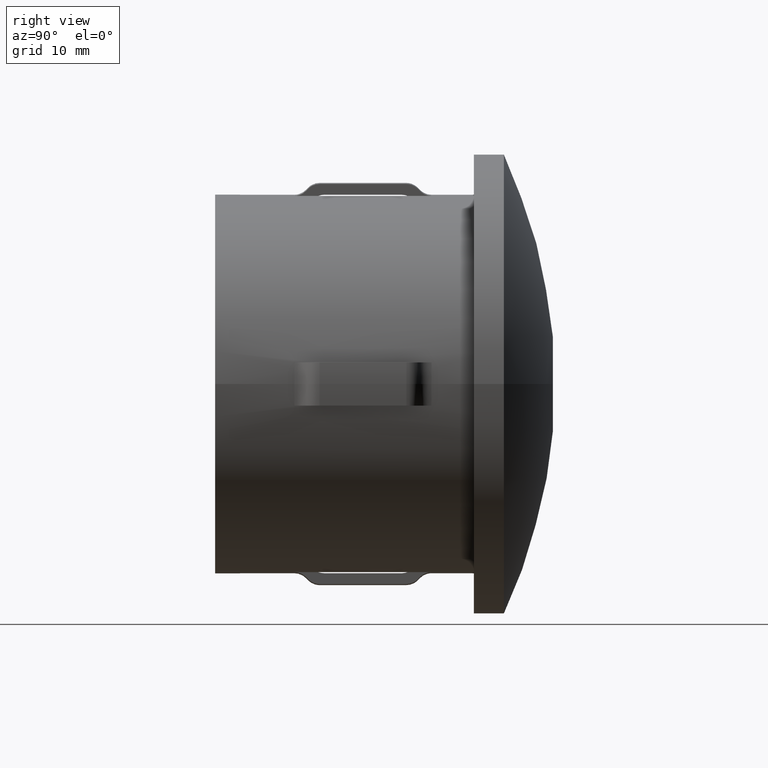
[diagram: clean part render]
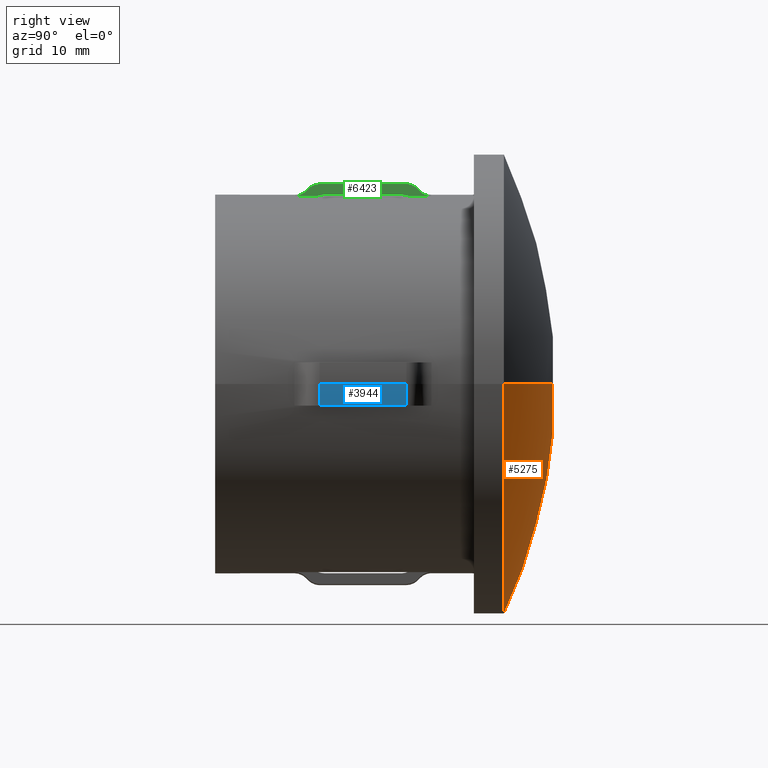
[diagram: same view with three faces highlighted in distinct colors, each labeled with its STEP entity id]
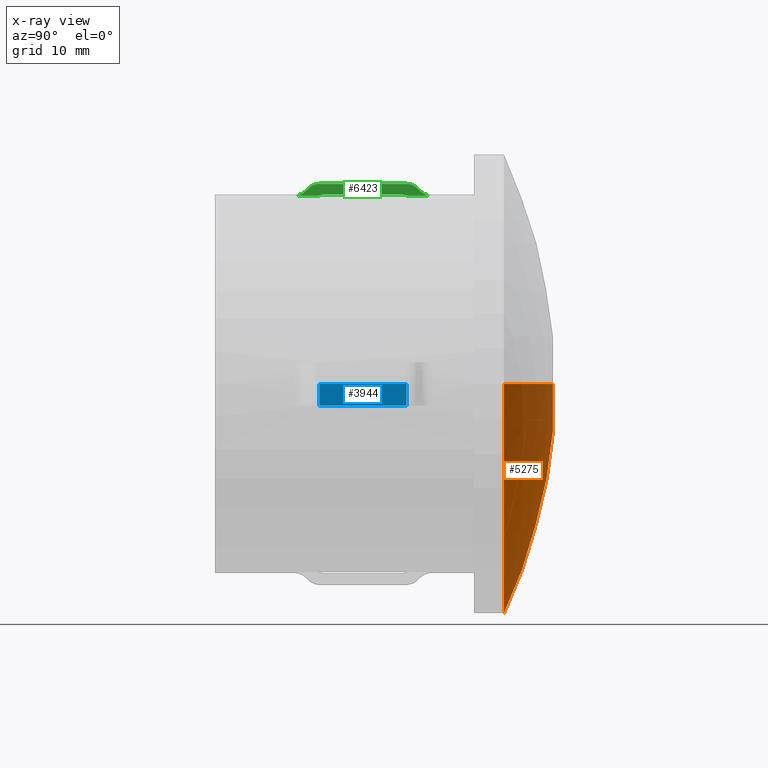
[diagram: x-ray of the same camera — body ghosted, the three highlighted faces saturated]
A machine part, right view with three faces highlighted in distinct colors.
The next image is the same camera in x-ray (body ghosted, the three faces saturated) — at least one of them is partly hidden behind the body in this view.
Their STEP definitions:

[orange] entity #5275 — the highlighted spherical surface has radius 50 mm.
#26 = AXIS2_PLACEMENT_3D ( 'NONE', #1508, #10444, #9065 ) ;
#30 = EDGE_CURVE ( 'NONE', #7196, #11757, #2524, .T. ) ;
#300 = DIRECTION ( 'NONE',  ( -0.0000000000000000000, 0.0000000000000000000, 1.000000000000000000 ) ) ;
#304 = EDGE_CURVE ( 'NONE', #7745, #5964, #4319, .T. ) ;
#1173 = ORIENTED_EDGE ( 'NONE', *, *, #304, .T. ) ;
#1508 = CARTESIAN_POINT ( 'NONE',  ( -4.200538521075421400E-015, -18.60000000000000500, 0.0000000000000000000 ) ) ;
#1547 = CIRCLE ( 'NONE', #6538, 21.20000000000001000 ) ;
#1562 = CARTESIAN_POINT ( 'NONE',  ( -21.19999999999988600, 26.68310943387181300, 2.596251214192390300E-015 ) ) ;
#1973 = DIRECTION ( 'NONE',  ( 0.0000000000000000000, 0.0000000000000000000, -1.000000000000000000 ) ) ;
#2319 = DIRECTION ( 'NONE',  ( 1.000000000000000000, -2.945756845998350200E-015, 0.0000000000000000000 ) ) ;
#2465 = ORIENTED_EDGE ( 'NONE', *, *, #4542, .F. ) ;
#2524 = CIRCLE ( 'NONE', #10245, 4.387235416614918100 ) ;
#2688 = DIRECTION ( 'NONE',  ( -0.0000000000000000000, -1.000000000000000000, -0.0000000000000000000 ) ) ;
#2780 = SPHERICAL_SURFACE ( 'NONE', #6409, 50.00000000000000000 ) ;
#2792 = DIRECTION ( 'NONE',  ( 1.000000000000000000, -2.914335439641035900E-015, 0.0000000000000000000 ) ) ;
#3193 = DIRECTION ( 'NONE',  ( -0.0000000000000000000, -1.000000000000000000, -0.0000000000000000000 ) ) ;
#3656 = EDGE_CURVE ( 'NONE', #11757, #7745, #7812, .T. ) ;
#4175 = FACE_OUTER_BOUND ( 'NONE', #5199, .T. ) ;
#4319 = CIRCLE ( 'NONE', #8017, 50.00000000000000000 ) ;
#4542 = EDGE_CURVE ( 'NONE', #7196, #14427, #9721, .T. ) ;
#4831 = CARTESIAN_POINT ( 'NONE',  ( -6.439761623881060800E-015, 26.68310943387175600, 0.0000000000000000000 ) ) ;
#5199 = EDGE_LOOP ( 'NONE', ( #2465, #9805, #9619, #1173, #7875 ) ) ;
#5202 = DIRECTION ( 'NONE',  ( 0.0000000000000000000, 0.0000000000000000000, -1.000000000000000000 ) ) ;
#5275 = ADVANCED_FACE ( 'NONE', ( #4175 ), #2780, .T. ) ;
#5964 = VERTEX_POINT ( 'NONE', #13017 ) ;
#6209 = CARTESIAN_POINT ( 'NONE',  ( -4.387235416614922600, 31.20714974177100100, 1.566766297599381200E-015 ) ) ;
#6409 = AXIS2_PLACEMENT_3D ( 'NONE', #12687, #300, #2792 ) ;
#6538 = AXIS2_PLACEMENT_3D ( 'NONE', #4831, #7295, #2319 ) ;
#7196 = VERTEX_POINT ( 'NONE', #6209 ) ;
#7295 = DIRECTION ( 'NONE',  ( -2.904862207577519400E-015, -1.000000000000000000, -0.0000000000000000000 ) ) ;
#7745 = VERTEX_POINT ( 'NONE', #15445 ) ;
#7812 = CIRCLE ( 'NONE', #7961, 4.387235416614918100 ) ;
#7875 = ORIENTED_EDGE ( 'NONE', *, *, #11268, .F. ) ;
#7961 = AXIS2_PLACEMENT_3D ( 'NONE', #12697, #2688, #5202 ) ;
#8017 = AXIS2_PLACEMENT_3D ( 'NONE', #10345, #11594, #12581 ) ;
#8112 = CARTESIAN_POINT ( 'NONE',  ( 5.372813810063367200E-016, 31.20714974177100100, -4.387235416614920800 ) ) ;
#9065 = DIRECTION ( 'NONE',  ( 1.000000000000000000, 0.0000000000000000000, -1.224646799147353200E-016 ) ) ;
#9619 = ORIENTED_EDGE ( 'NONE', *, *, #3656, .T. ) ;
#9721 = CIRCLE ( 'NONE', #26, 50.00000000000000000 ) ;
#9805 = ORIENTED_EDGE ( 'NONE', *, *, #30, .T. ) ;
#10245 = AXIS2_PLACEMENT_3D ( 'NONE', #11884, #3193, #1973 ) ;
#10345 = CARTESIAN_POINT ( 'NONE',  ( -4.200538521075421400E-015, -18.60000000000000500, 0.0000000000000000000 ) ) ;
#10444 = DIRECTION ( 'NONE',  ( 1.224646799147353200E-016, -3.557430204473923300E-031, 1.000000000000000000 ) ) ;
#11268 = EDGE_CURVE ( 'NONE', #14427, #5964, #1547, .T. ) ;
#11594 = DIRECTION ( 'NONE',  ( 0.0000000000000000000, 0.0000000000000000000, -1.000000000000000000 ) ) ;
#11757 = VERTEX_POINT ( 'NONE', #8112 ) ;
#11884 = CARTESIAN_POINT ( 'NONE',  ( -4.200538521075421400E-015, 31.20714974177100100, 0.0000000000000000000 ) ) ;
#12581 = DIRECTION ( 'NONE',  ( -1.000000000000000000, 0.0000000000000000000, 0.0000000000000000000 ) ) ;
#12687 = CARTESIAN_POINT ( 'NONE',  ( -4.200538521075421400E-015, -18.60000000000000500, 0.0000000000000000000 ) ) ;
#12697 = CARTESIAN_POINT ( 'NONE',  ( -4.200538521075421400E-015, 31.20714974177100100, 0.0000000000000000000 ) ) ;
#13017 = CARTESIAN_POINT ( 'NONE',  ( 21.20000000000000300, 26.68310943387169200, 0.0000000000000000000 ) ) ;
#14427 = VERTEX_POINT ( 'NONE', #1562 ) ;
#15445 = CARTESIAN_POINT ( 'NONE',  ( 4.387235416614914600, 31.20714974177100100, 0.0000000000000000000 ) ) ;

[blue] entity #3944 — the highlighted cylindrical surface (partial cylindrical patch) has radius 18.6 mm, axis along (-0, -1, -0).
#12 = ORIENTED_EDGE ( 'NONE', *, *, #16360, .F. ) ;
#191 = CARTESIAN_POINT ( 'NONE',  ( 18.60000000000004100, 28.89999999999993800, 0.0000000000000000000 ) ) ;
#534 = VECTOR ( 'NONE', #13981, 1000.000000000000000 ) ;
#2115 = EDGE_CURVE ( 'NONE', #14922, #11690, #14711, .T. ) ;
#3060 = CIRCLE ( 'NONE', #6067, 18.60000000000005500 ) ;
#3941 = CARTESIAN_POINT ( 'NONE',  ( 18.59999999999999800, 17.65735931288070400, 0.0000000000000000000 ) ) ;
#3944 = ADVANCED_FACE ( 'NONE', ( #8215 ), #7422, .T. ) ;
#3989 = DIRECTION ( 'NONE',  ( -2.904862207577519400E-015, -1.000000000000000000, -0.0000000000000000000 ) ) ;
#4503 = ORIENTED_EDGE ( 'NONE', *, *, #7488, .F. ) ;
#4609 = VERTEX_POINT ( 'NONE', #12018 ) ;
#4884 = CARTESIAN_POINT ( 'NONE',  ( 18.49216050114225900, 20.00000000000000000, -2.000000000000006200 ) ) ;
#5002 = DIRECTION ( 'NONE',  ( 1.000000000000000000, -2.984470496304179600E-015, 0.0000000000000000000 ) ) ;
#6067 = AXIS2_PLACEMENT_3D ( 'NONE', #10264, #3989, #15078 ) ;
#6201 = CARTESIAN_POINT ( 'NONE',  ( -3.265832204538601600E-014, 17.65735931288076100, 0.0000000000000000000 ) ) ;
#6263 = DIRECTION ( 'NONE',  ( -2.904862207577519400E-015, -1.000000000000000000, -0.0000000000000000000 ) ) ;
#6371 = AXIS2_PLACEMENT_3D ( 'NONE', #6201, #6263, #5002 ) ;
#7387 = DIRECTION ( 'NONE',  ( -2.449293598294745400E-017, -1.000000000000000000, -0.0000000000000000000 ) ) ;
#7414 = CIRCLE ( 'NONE', #6371, 18.60000000000003000 ) ;
#7422 = CYLINDRICAL_SURFACE ( 'NONE', #12388, 18.60000000000004100 ) ;
#7431 = EDGE_LOOP ( 'NONE', ( #14353, #14632, #12, #4503 ) ) ;
#7488 = EDGE_CURVE ( 'NONE', #8202, #4609, #9090, .T. ) ;
#7541 = CARTESIAN_POINT ( 'NONE',  ( 18.49216050114225900, 17.65735931288070400, -2.000000000000006200 ) ) ;
#8202 = VERTEX_POINT ( 'NONE', #7541 ) ;
#8215 = FACE_OUTER_BOUND ( 'NONE', #7431, .T. ) ;
#9090 = LINE ( 'NONE', #4884, #11246 ) ;
#10264 = CARTESIAN_POINT ( 'NONE',  ( -5.589721970600615900E-014, 9.657359312880768000, 0.0000000000000000000 ) ) ;
#10971 = DIRECTION ( 'NONE',  ( 1.000000000000000000, -2.984470496304177700E-015, 0.0000000000000000000 ) ) ;
#11246 = VECTOR ( 'NONE', #7387, 1000.000000000000000 ) ;
#11690 = VERTEX_POINT ( 'NONE', #13608 ) ;
#12018 = CARTESIAN_POINT ( 'NONE',  ( 18.49216050114225900, 9.657359312880759100, -2.000000000000006200 ) ) ;
#12388 = AXIS2_PLACEMENT_3D ( 'NONE', #14825, #13510, #10971 ) ;
#13510 = DIRECTION ( 'NONE',  ( -2.904862207577519400E-015, -1.000000000000000000, -0.0000000000000000000 ) ) ;
#13608 = CARTESIAN_POINT ( 'NONE',  ( 18.59999999999999800, 9.657359312880712900, 0.0000000000000000000 ) ) ;
#13981 = DIRECTION ( 'NONE',  ( -2.904862207577519400E-015, -1.000000000000000000, -0.0000000000000000000 ) ) ;
#14353 = ORIENTED_EDGE ( 'NONE', *, *, #16211, .T. ) ;
#14632 = ORIENTED_EDGE ( 'NONE', *, *, #2115, .T. ) ;
#14711 = LINE ( 'NONE', #191, #534 ) ;
#14825 = CARTESIAN_POINT ( 'NONE',  ( 0.0000000000000000000, 28.89999999999999500, 0.0000000000000000000 ) ) ;
#14922 = VERTEX_POINT ( 'NONE', #3941 ) ;
#15078 = DIRECTION ( 'NONE',  ( 1.000000000000000000, -2.891205793294669900E-015, 0.0000000000000000000 ) ) ;
#16211 = EDGE_CURVE ( 'NONE', #8202, #14922, #7414, .T. ) ;
#16360 = EDGE_CURVE ( 'NONE', #4609, #11690, #3060, .T. ) ;

[green] entity #6423 — the highlighted planar face has unit normal (-1, 0, 0).
#173 = VERTEX_POINT ( 'NONE', #8145 ) ;
#288 = VERTEX_POINT ( 'NONE', #2615 ) ;
#351 = B_SPLINE_CURVE_WITH_KNOTS ( 'NONE', 3,
 ( #5584, #15545, #5633, #1850, #4301, #12901 ),
 .UNSPECIFIED., .F., .F.,
 ( 4, 2, 4 ),
 ( 0.009285485827779133000, 0.009559476709259238900, 0.009833467590739346600 ),
 .UNSPECIFIED. ) ;
#747 = CARTESIAN_POINT ( 'NONE',  ( 2.000000000000001800, 8.596699141100938100, 18.05019606195101300 ) ) ;
#779 = VERTEX_POINT ( 'NONE', #12045 ) ;
#838 = CARTESIAN_POINT ( 'NONE',  ( 2.000000000000001800, 19.51748736437815500, 17.46212239619604700 ) ) ;
#951 = CARTESIAN_POINT ( 'NONE',  ( 2.000000000000001800, 19.90174057918428800, 17.38533865071372000 ) ) ;
#1104 = CARTESIAN_POINT ( 'NONE',  ( 2.000000000000002200, 7.709888562621864100, 17.42541789302996600 ) ) ;
#1159 = CARTESIAN_POINT ( 'NONE',  ( 2.000000000000001800, 8.375378797541291200, 17.82750440954562200 ) ) ;
#1295 = CARTESIAN_POINT ( 'NONE',  ( 2.000000000000001800, 8.375378797541291200, 17.82750440954562200 ) ) ;
#1478 = CARTESIAN_POINT ( 'NONE',  ( 2.000000000000001800, 8.734885403289665000, 18.18922800040782300 ) ) ;
#1567 = EDGE_CURVE ( 'NONE', #5440, #173, #351, .T. ) ;
#1708 = VERTEX_POINT ( 'NONE', #7149 ) ;
#1850 = CARTESIAN_POINT ( 'NONE',  ( 2.000000000000001800, 17.60809400907536200, 17.44352303709124300 ) ) ;
#2293 = EDGE_CURVE ( 'NONE', #288, #10485, #11573, .T. ) ;
#2386 = CARTESIAN_POINT ( 'NONE',  ( 2.000000000000001800, 8.499944554899885300, 17.95284696659543800 ) ) ;
#2573 = LINE ( 'NONE', #11717, #12418 ) ;
#2604 = LINE ( 'NONE', #4820, #13407 ) ;
#2615 = CARTESIAN_POINT ( 'NONE',  ( 2.000000000000001800, 8.596699141100938100, 18.05019606195101300 ) ) ;
#2685 = CARTESIAN_POINT ( 'NONE',  ( 2.000000000000002200, 17.85309536729031900, 18.49216050114217300 ) ) ;
#2814 = CARTESIAN_POINT ( 'NONE',  ( 2.000000000000001800, 9.618910890165880200, 17.41858078490981000 ) ) ;
#2983 = CARTESIAN_POINT ( 'NONE',  ( 2.000000000000001300, 9.533056394540459200, 17.38533865071378400 ) ) ;
#3122 = B_SPLINE_CURVE_WITH_KNOTS ( 'NONE', 3,
 ( #1159, #12338, #16144, #3717, #16087, #1104, #14964, #16197 ),
 .UNSPECIFIED., .F., .F.,
 ( 4, 2, 2, 4 ),
 ( 0.008378263219951028300, 0.008671148181916069100, 0.008964033143881109900, 0.009549803067811188000 ),
 .UNSPECIFIED. ) ;
#3142 = EDGE_CURVE ( 'NONE', #10374, #4786, #9162, .T. ) ;
#3240 = AXIS2_PLACEMENT_3D ( 'NONE', #6691, #9267, #5255 ) ;
#3276 = ORIENTED_EDGE ( 'NONE', *, *, #15056, .T. ) ;
#3281 = CARTESIAN_POINT ( 'NONE',  ( 2.000000000000002200, 18.93933982822022300, 17.82750440954559300 ) ) ;
#3717 = CARTESIAN_POINT ( 'NONE',  ( 2.000000000000001800, 8.066886586438251100, 17.58515210565352000 ) ) ;
#4018 = VERTEX_POINT ( 'NONE', #6292 ) ;
#4069 = ORIENTED_EDGE ( 'NONE', *, *, #8441, .T. ) ;
#4193 = CARTESIAN_POINT ( 'NONE',  ( 2.000000000000002200, 18.71801948466057300, 18.05019606195098400 ) ) ;
#4203 = CARTESIAN_POINT ( 'NONE',  ( 2.000000000000001800, 9.657359312880759100, 18.49216050114217300 ) ) ;
#4301 = CARTESIAN_POINT ( 'NONE',  ( 2.000000000000001800, 17.69595506865593000, 17.41852373879558900 ) ) ;
#4447 = EDGE_CURVE ( 'NONE', #12121, #11181, #8119, .T. ) ;
#4465 = CARTESIAN_POINT ( 'NONE',  ( 2.000000000000001300, 7.314718625761423200, 17.38533865071378400 ) ) ;
#4531 = CARTESIAN_POINT ( 'NONE',  ( 2.000000000000001800, 8.548321251106481000, 18.00152210755175400 ) ) ;
#4641 = CARTESIAN_POINT ( 'NONE',  ( 2.000000000000001800, 17.24314575050765800, 17.48599439551554400 ) ) ;
#4663 = CARTESIAN_POINT ( 'NONE',  ( 2.000000000000002200, 18.93933982822022300, 17.82750440954559300 ) ) ;
#4786 = VERTEX_POINT ( 'NONE', #3281 ) ;
#4820 = CARTESIAN_POINT ( 'NONE',  ( 2.000000000000002200, 28.89999999999999500, 17.48599439551556100 ) ) ;
#5255 = DIRECTION ( 'NONE',  ( 1.840732803169827000E-016, 0.0000000000000000000, 1.000000000000000000 ) ) ;
#5373 = CARTESIAN_POINT ( 'NONE',  ( 2.000000000000002200, 17.65735931288070400, 18.49216050114217300 ) ) ;
#5420 = CARTESIAN_POINT ( 'NONE',  ( 2.000000000000002200, 17.65735931288070400, 18.49216050114217300 ) ) ;
#5440 = VERTEX_POINT ( 'NONE', #4641 ) ;
#5446 = DIRECTION ( 'NONE',  ( -2.449293598294745400E-017, -1.000000000000000000, -0.0000000000000000000 ) ) ;
#5463 = ORIENTED_EDGE ( 'NONE', *, *, #8124, .T. ) ;
#5584 = CARTESIAN_POINT ( 'NONE',  ( 2.000000000000001800, 17.24314575050765800, 17.48599439551554400 ) ) ;
#5633 = CARTESIAN_POINT ( 'NONE',  ( 2.000000000000002200, 17.42810450480808300, 17.47730362643135000 ) ) ;
#5840 = ORIENTED_EDGE ( 'NONE', *, *, #7701, .T. ) ;
#5879 = B_SPLINE_CURVE_WITH_KNOTS ( 'NONE', 3,
 ( #4663, #8700, #10708, #12436, #13893, #7258, #10540 ),
 .UNSPECIFIED., .F., .F.,
 ( 4, 3, 4 ),
 ( 0.001437403894038519700, 0.001545490272990829700, 0.001751369279530773300 ),
 .UNSPECIFIED. ) ;
#5905 = EDGE_CURVE ( 'NONE', #10374, #173, #2573, .T. ) ;
#5954 = CARTESIAN_POINT ( 'NONE',  ( 2.000000000000001800, 20.00000000000000000, 17.38533865071378400 ) ) ;
#6160 = CARTESIAN_POINT ( 'NONE',  ( 2.000000000000001800, 8.426171981816253300, 17.87861554639675500 ) ) ;
#6210 = CARTESIAN_POINT ( 'NONE',  ( 2.000000000000001800, 8.375378797541291200, 17.82750440954562200 ) ) ;
#6292 = CARTESIAN_POINT ( 'NONE',  ( 2.000000000000001300, 9.533056394540459200, 17.38533865071378400 ) ) ;
#6335 = CARTESIAN_POINT ( 'NONE',  ( 2.000000000000002200, 20.00000000000000000, 18.49216050114217300 ) ) ;
#6423 = ADVANCED_FACE ( 'NONE', ( #11052 ), #13987, .F. ) ;
#6511 = CARTESIAN_POINT ( 'NONE',  ( 2.000000000000002700, 18.05250276661826400, 18.45212209521671900 ) ) ;
#6536 = ORIENTED_EDGE ( 'NONE', *, *, #8099, .T. ) ;
#6568 = CARTESIAN_POINT ( 'NONE',  ( 2.000000000000002700, 18.40951342041598000, 18.29248206970621400 ) ) ;
#6691 = CARTESIAN_POINT ( 'NONE',  ( 1.999999999999998700, 20.00000000000000000, -3.681465606339651100E-016 ) ) ;
#6755 = CARTESIAN_POINT ( 'NONE',  ( 2.000000000000001800, 9.979819980249041900, 17.48599439551559000 ) ) ;
#6820 = ORIENTED_EDGE ( 'NONE', *, *, #1567, .T. ) ;
#7149 = CARTESIAN_POINT ( 'NONE',  ( 2.000000000000002200, 18.71801948466057300, 18.05019606195098400 ) ) ;
#7258 = CARTESIAN_POINT ( 'NONE',  ( 2.000000000000002200, 18.76639737465501800, 18.00152210755174300 ) ) ;
#7519 = DIRECTION ( 'NONE',  ( -2.449293598294745400E-017, -1.000000000000000000, -0.0000000000000000000 ) ) ;
#7701 = EDGE_CURVE ( 'NONE', #1708, #12121, #9504, .T. ) ;
#8018 = EDGE_LOOP ( 'NONE', ( #13024, #6536, #5840, #12039, #4069, #14768, #5463, #14869, #3276, #8433, #6820, #10351 ) ) ;
#8099 = EDGE_CURVE ( 'NONE', #4786, #1708, #5879, .T. ) ;
#8119 = LINE ( 'NONE', #6335, #14993 ) ;
#8124 = EDGE_CURVE ( 'NONE', #10485, #13341, #3122, .T. ) ;
#8145 = CARTESIAN_POINT ( 'NONE',  ( 2.000000000000001800, 17.78166223122102000, 17.38533865071378400 ) ) ;
#8376 = CARTESIAN_POINT ( 'NONE',  ( 2.000000000000001800, 20.00000000000000000, 17.38533865071378400 ) ) ;
#8433 = ORIENTED_EDGE ( 'NONE', *, *, #10433, .T. ) ;
#8441 = EDGE_CURVE ( 'NONE', #11181, #288, #13872, .T. ) ;
#8476 = B_SPLINE_CURVE_WITH_KNOTS ( 'NONE', 3,
 ( #2983, #2814, #10428, #10603, #6755, #12983 ),
 .UNSPECIFIED., .F., .F.,
 ( 4, 2, 4 ),
 ( 6.956415634284913500E-005, 0.0003437248390210151600, 0.0006178855216991811300 ),
 .UNSPECIFIED. ) ;
#8700 = CARTESIAN_POINT ( 'NONE',  ( 2.000000000000002200, 18.91394340682895200, 17.85306014765074400 ) ) ;
#8974 = CARTESIAN_POINT ( 'NONE',  ( 2.000000000000002700, 18.32356555823370700, 18.33875975820996000 ) ) ;
#9162 = B_SPLINE_CURVE_WITH_KNOTS ( 'NONE', 3,
 ( #5954, #951, #15943, #9747, #838, #9798, #14706, #9693 ),
 .UNSPECIFIED., .F., .F.,
 ( 4, 2, 2, 4 ),
 ( 0.008514186150407858000, 0.008807091256407616900, 0.009099996362407375800, 0.009685806574406900400 ),
 .UNSPECIFIED. ) ;
#9218 = CARTESIAN_POINT ( 'NONE',  ( 2.000000000000001800, 8.903682007018369800, 18.30260200476880800 ) ) ;
#9267 = DIRECTION ( 'NONE',  ( -1.000000000000000000, 2.449293598294745400E-017, 1.840732803169827000E-016 ) ) ;
#9504 = B_SPLINE_CURVE_WITH_KNOTS ( 'NONE', 3,
 ( #4193, #14210, #12909, #6568, #8974, #6511, #2685, #5420 ),
 .UNSPECIFIED., .F., .F.,
 ( 4, 2, 2, 4 ),
 ( 0.008384665986129646200, 0.008677527652831713200, 0.008970389319533778400, 0.009556112652937917600 ),
 .UNSPECIFIED. ) ;
#9665 = VECTOR ( 'NONE', #5446, 1000.000000000000000 ) ;
#9693 = CARTESIAN_POINT ( 'NONE',  ( 2.000000000000002200, 18.93933982822022300, 17.82750440954559300 ) ) ;
#9747 = CARTESIAN_POINT ( 'NONE',  ( 2.000000000000001800, 19.61116770462666600, 17.43363946521474300 ) ) ;
#9798 = CARTESIAN_POINT ( 'NONE',  ( 2.000000000000001800, 19.24323435011486400, 17.57643902982024600 ) ) ;
#9864 = LINE ( 'NONE', #15414, #9665 ) ;
#10351 = ORIENTED_EDGE ( 'NONE', *, *, #5905, .F. ) ;
#10374 = VERTEX_POINT ( 'NONE', #8376 ) ;
#10428 = CARTESIAN_POINT ( 'NONE',  ( 2.000000000000002200, 9.706851960163625400, 17.44358030966662200 ) ) ;
#10433 = EDGE_CURVE ( 'NONE', #779, #5440, #2604, .T. ) ;
#10464 = DIRECTION ( 'NONE',  ( -2.449293598294745400E-017, -1.000000000000000000, -0.0000000000000000000 ) ) ;
#10479 = CARTESIAN_POINT ( 'NONE',  ( 2.000000000000001800, 8.596699141100938100, 18.05019606195101300 ) ) ;
#10485 = VERTEX_POINT ( 'NONE', #1295 ) ;
#10540 = CARTESIAN_POINT ( 'NONE',  ( 2.000000000000002200, 18.71801948466057300, 18.05019606195098400 ) ) ;
#10603 = CARTESIAN_POINT ( 'NONE',  ( 2.000000000000001800, 9.886846867211728500, 17.47733266652503300 ) ) ;
#10708 = CARTESIAN_POINT ( 'NONE',  ( 2.000000000000002200, 18.88854664394522900, 17.87861554639676200 ) ) ;
#10992 = EDGE_CURVE ( 'NONE', #4018, #13341, #9864, .T. ) ;
#11052 = FACE_OUTER_BOUND ( 'NONE', #8018, .T. ) ;
#11181 = VERTEX_POINT ( 'NONE', #16138 ) ;
#11573 = B_SPLINE_CURVE_WITH_KNOTS ( 'NONE', 3,
 ( #747, #4531, #2386, #12399, #6160, #13700, #6210 ),
 .UNSPECIFIED., .F., .F.,
 ( 4, 3, 4 ),
 ( 0.001339611258810015000, 0.001545490266248231200, 0.001653576645672026200 ),
 .UNSPECIFIED. ) ;
#11717 = CARTESIAN_POINT ( 'NONE',  ( 2.000000000000001800, 20.00000000000000000, 17.38533865071378400 ) ) ;
#11786 = CARTESIAN_POINT ( 'NONE',  ( 2.000000000000002200, 9.264892572181647500, 18.45281106140990000 ) ) ;
#12039 = ORIENTED_EDGE ( 'NONE', *, *, #4447, .T. ) ;
#12045 = CARTESIAN_POINT ( 'NONE',  ( 1.999999999999947600, 10.07157287525381100, 17.48599439551556100 ) ) ;
#12121 = VERTEX_POINT ( 'NONE', #5373 ) ;
#12338 = CARTESIAN_POINT ( 'NONE',  ( 2.000000000000001800, 8.306545796046959800, 17.75823960518286500 ) ) ;
#12368 = DIRECTION ( 'NONE',  ( 2.904862207577519400E-015, 1.000000000000000000, 0.0000000000000000000 ) ) ;
#12399 = CARTESIAN_POINT ( 'NONE',  ( 2.000000000000001800, 8.451569081837943600, 17.90417061008419000 ) ) ;
#12418 = VECTOR ( 'NONE', #10464, 1000.000000000000000 ) ;
#12436 = CARTESIAN_POINT ( 'NONE',  ( 2.000000000000002200, 18.86314954392352300, 17.90417061008421100 ) ) ;
#12901 = CARTESIAN_POINT ( 'NONE',  ( 2.000000000000001800, 17.78166223122102000, 17.38533865071378400 ) ) ;
#12909 = CARTESIAN_POINT ( 'NONE',  ( 2.000000000000002200, 18.57254041950627500, 18.18283845687307500 ) ) ;
#12983 = CARTESIAN_POINT ( 'NONE',  ( 1.999999999999947600, 10.07157287525381100, 17.48599439551556100 ) ) ;
#13024 = ORIENTED_EDGE ( 'NONE', *, *, #3142, .T. ) ;
#13341 = VERTEX_POINT ( 'NONE', #4465 ) ;
#13407 = VECTOR ( 'NONE', #12368, 1000.000000000000000 ) ;
#13700 = CARTESIAN_POINT ( 'NONE',  ( 2.000000000000001800, 8.400775218932548000, 17.85306014765075500 ) ) ;
#13872 = B_SPLINE_CURVE_WITH_KNOTS ( 'NONE', 3,
 ( #4203, #15341, #11786, #9218, #1478, #10479 ),
 .UNSPECIFIED., .F., .F.,
 ( 4, 2, 4 ),
 ( 0.008356386548262966600, 0.008942053253814235400, 0.009527719959365504200 ),
 .UNSPECIFIED. ) ;
#13893 = CARTESIAN_POINT ( 'NONE',  ( 2.000000000000002200, 18.81477407086159600, 17.95284696659544500 ) ) ;
#13987 = PLANE ( 'NONE',  #3240 ) ;
#14210 = CARTESIAN_POINT ( 'NONE',  ( 2.000000000000002200, 18.64918829730974200, 18.11944848438497900 ) ) ;
#14706 = CARTESIAN_POINT ( 'NONE',  ( 2.000000000000001800, 19.07700910950550400, 17.68897150195808300 ) ) ;
#14768 = ORIENTED_EDGE ( 'NONE', *, *, #2293, .T. ) ;
#14869 = ORIENTED_EDGE ( 'NONE', *, *, #10992, .F. ) ;
#14964 = CARTESIAN_POINT ( 'NONE',  ( 2.000000000000001800, 7.510469514724725600, 17.38533865071373400 ) ) ;
#14993 = VECTOR ( 'NONE', #7519, 1000.000000000000000 ) ;
#15056 = EDGE_CURVE ( 'NONE', #4018, #779, #8476, .T. ) ;
#15341 = CARTESIAN_POINT ( 'NONE',  ( 2.000000000000001800, 9.462118156907203900, 18.49216050114214500 ) ) ;
#15414 = CARTESIAN_POINT ( 'NONE',  ( 2.000000000000001800, 20.00000000000000000, 17.38533865071378400 ) ) ;
#15545 = CARTESIAN_POINT ( 'NONE',  ( 2.000000000000001800, 17.33529969958417300, 17.48599439551554700 ) ) ;
#15943 = CARTESIAN_POINT ( 'NONE',  ( 2.000000000000001800, 19.80272810474602000, 17.39522849523665100 ) ) ;
#16087 = CARTESIAN_POINT ( 'NONE',  ( 2.000000000000002200, 7.980945414044333200, 17.53885097473811100 ) ) ;
#16138 = CARTESIAN_POINT ( 'NONE',  ( 2.000000000000001800, 9.657359312880759100, 18.49216050114217300 ) ) ;
#16144 = CARTESIAN_POINT ( 'NONE',  ( 2.000000000000001800, 8.229896906462670400, 17.69483042905369200 ) ) ;
#16197 = CARTESIAN_POINT ( 'NONE',  ( 2.000000000000001300, 7.314718625761423200, 17.38533865071378400 ) ) ;